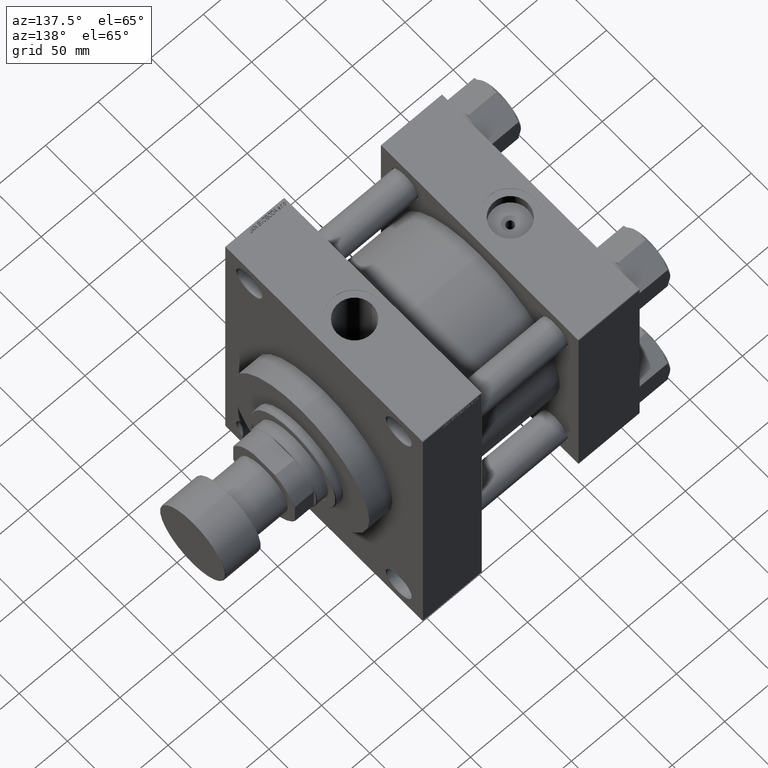
[diagram: clean part render]
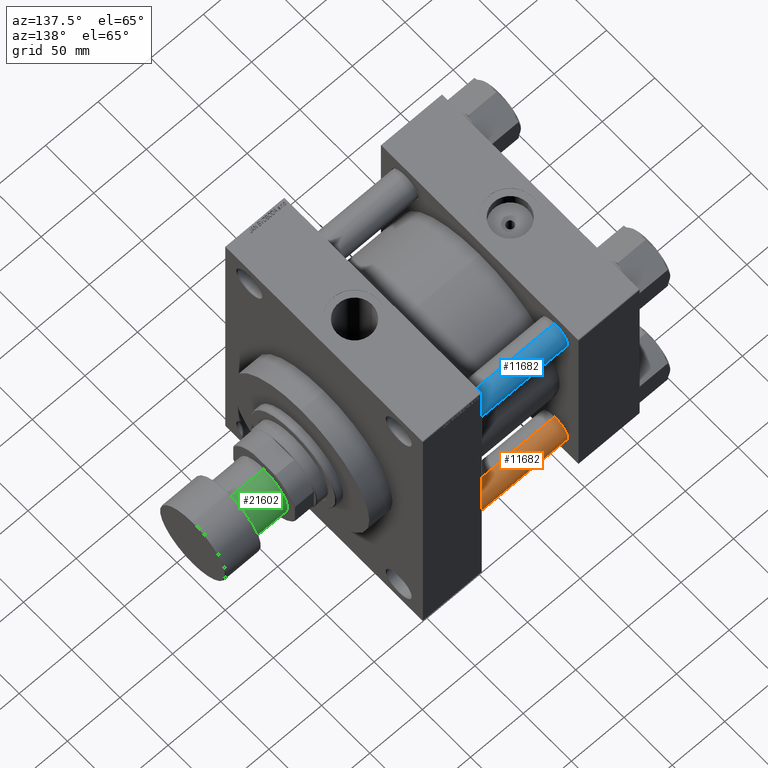
[diagram: same view with three faces highlighted in distinct colors, each labeled with its STEP entity id]
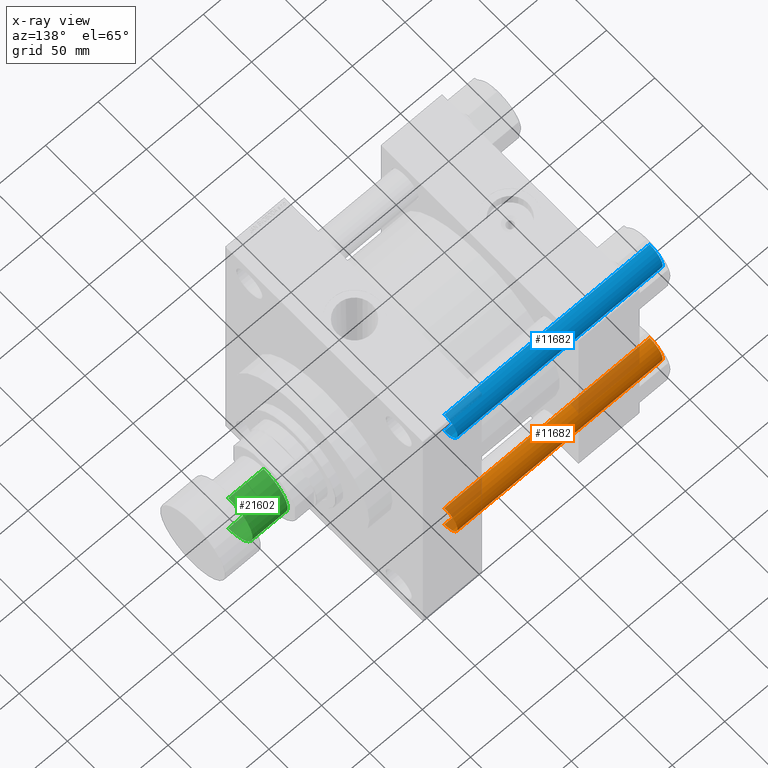
[diagram: x-ray of the same camera — body ghosted, the three highlighted faces saturated]
A machine part, auxiliary view with three faces highlighted in distinct colors.
The next image is the same camera in x-ray (body ghosted, the three faces saturated) — at least one of them is partly hidden behind the body in this view.
Their STEP definitions:

[orange] entity #11682 — the highlighted cylindrical surface (edge-blend (fillet) strip) has radius 13.5 mm, axis along (-1, -0, 0).
#63 = VERTEX_POINT ( 'NONE', #25519 ) ;
#1033 = LINE ( 'NONE', #30973, #38348 ) ;
#1485 = FACE_OUTER_BOUND ( 'NONE', #45950, .T. ) ;
#4372 = CARTESIAN_POINT ( 'NONE',  ( -13.50000000000000000, 0.000000000000000000, 0.4999999999999726885 ) ) ;
#6468 = DIRECTION ( 'NONE',  ( -0.000000000000000000, -0.000000000000000000, -1.000000000000000000 ) ) ;
#6941 = LINE ( 'NONE', #10119, #24000 ) ;
#7500 = VERTEX_POINT ( 'NONE', #4372 ) ;
#9059 = ORIENTED_EDGE ( 'NONE', *, *, #12399, .T. ) ;
#9957 = ORIENTED_EDGE ( 'NONE', *, *, #35937, .F. ) ;
#10119 = CARTESIAN_POINT ( 'NONE',  ( 13.50000000000000000, 1.653273178848926867E-15, 196.0000000000000000 ) ) ;
#11130 = EDGE_CURVE ( 'NONE', #63, #31006, #6941, .T. ) ;
#11682 = ADVANCED_FACE ( 'NONE', ( #1485 ), #27047, .T. ) ;
#12399 = EDGE_CURVE ( 'NONE', #31006, #7500, #15460, .T. ) ;
#12446 = DIRECTION ( 'NONE',  ( -0.000000000000000000, -0.000000000000000000, 1.000000000000000000 ) ) ;
#12896 = EDGE_CURVE ( 'NONE', #18075, #63, #26347, .T. ) ;
#15460 = CIRCLE ( 'NONE', #20139, 13.50000000000000000 ) ;
#17720 = CARTESIAN_POINT ( 'NONE',  ( 0.000000000000000000, 0.000000000000000000, 195.5000000000000284 ) ) ;
#18075 = VERTEX_POINT ( 'NONE', #43766 ) ;
#20139 = AXIS2_PLACEMENT_3D ( 'NONE', #27295, #12446, #34834 ) ;
#23201 = DIRECTION ( 'NONE',  ( -0.000000000000000000, -0.000000000000000000, -1.000000000000000000 ) ) ;
#24000 = VECTOR ( 'NONE', #6468, 1000.000000000000000 ) ;
#24571 = DIRECTION ( 'NONE',  ( 1.000000000000000000, 0.000000000000000000, 0.000000000000000000 ) ) ;
#25032 = DIRECTION ( 'NONE',  ( 0.000000000000000000, 0.000000000000000000, -1.000000000000000000 ) ) ;
#25519 = CARTESIAN_POINT ( 'NONE',  ( 13.50000000000000000, 1.653273178848926867E-15, 195.5000000000000284 ) ) ;
#26347 = CIRCLE ( 'NONE', #44230, 13.50000000000000000 ) ;
#27047 = CYLINDRICAL_SURFACE ( 'NONE', #40305, 13.50000000000000000 ) ;
#27295 = CARTESIAN_POINT ( 'NONE',  ( 0.000000000000000000, 0.000000000000000000, 0.4999999999999726885 ) ) ;
#27774 = DIRECTION ( 'NONE',  ( -0.000000000000000000, -0.000000000000000000, -1.000000000000000000 ) ) ;
#30973 = CARTESIAN_POINT ( 'NONE',  ( -13.50000000000000000, 0.000000000000000000, 196.0000000000000000 ) ) ;
#31006 = VERTEX_POINT ( 'NONE', #31031 ) ;
#31031 = CARTESIAN_POINT ( 'NONE',  ( 13.50000000000000000, 1.653273178848926867E-15, 0.4999999999999726885 ) ) ;
#34834 = DIRECTION ( 'NONE',  ( 1.000000000000000000, 0.000000000000000000, 0.000000000000000000 ) ) ;
#35937 = EDGE_CURVE ( 'NONE', #18075, #7500, #1033, .T. ) ;
#38348 = VECTOR ( 'NONE', #23201, 1000.000000000000000 ) ;
#38474 = CARTESIAN_POINT ( 'NONE',  ( 0.000000000000000000, 0.000000000000000000, 196.0000000000000000 ) ) ;
#40305 = AXIS2_PLACEMENT_3D ( 'NONE', #38474, #27774, #41886 ) ;
#41886 = DIRECTION ( 'NONE',  ( -1.000000000000000000, 0.000000000000000000, 0.000000000000000000 ) ) ;
#43766 = CARTESIAN_POINT ( 'NONE',  ( -13.50000000000000000, 0.000000000000000000, 195.5000000000000284 ) ) ;
#44066 = ORIENTED_EDGE ( 'NONE', *, *, #12896, .T. ) ;
#44230 = AXIS2_PLACEMENT_3D ( 'NONE', #17720, #25032, #24571 ) ;
#44877 = ORIENTED_EDGE ( 'NONE', *, *, #11130, .T. ) ;
#45950 = EDGE_LOOP ( 'NONE', ( #44066, #44877, #9059, #9957 ) ) ;

[blue] entity #11682 — the highlighted cylindrical surface (edge-blend (fillet) strip) has radius 13.5 mm, axis along (1, -0, -0).
#63 = VERTEX_POINT ( 'NONE', #25519 ) ;
#1033 = LINE ( 'NONE', #30973, #38348 ) ;
#1485 = FACE_OUTER_BOUND ( 'NONE', #45950, .T. ) ;
#4372 = CARTESIAN_POINT ( 'NONE',  ( -13.50000000000000000, 0.000000000000000000, 0.4999999999999726885 ) ) ;
#6468 = DIRECTION ( 'NONE',  ( -0.000000000000000000, -0.000000000000000000, -1.000000000000000000 ) ) ;
#6941 = LINE ( 'NONE', #10119, #24000 ) ;
#7500 = VERTEX_POINT ( 'NONE', #4372 ) ;
#9059 = ORIENTED_EDGE ( 'NONE', *, *, #12399, .T. ) ;
#9957 = ORIENTED_EDGE ( 'NONE', *, *, #35937, .F. ) ;
#10119 = CARTESIAN_POINT ( 'NONE',  ( 13.50000000000000000, 1.653273178848926867E-15, 196.0000000000000000 ) ) ;
#11130 = EDGE_CURVE ( 'NONE', #63, #31006, #6941, .T. ) ;
#11682 = ADVANCED_FACE ( 'NONE', ( #1485 ), #27047, .T. ) ;
#12399 = EDGE_CURVE ( 'NONE', #31006, #7500, #15460, .T. ) ;
#12446 = DIRECTION ( 'NONE',  ( -0.000000000000000000, -0.000000000000000000, 1.000000000000000000 ) ) ;
#12896 = EDGE_CURVE ( 'NONE', #18075, #63, #26347, .T. ) ;
#15460 = CIRCLE ( 'NONE', #20139, 13.50000000000000000 ) ;
#17720 = CARTESIAN_POINT ( 'NONE',  ( 0.000000000000000000, 0.000000000000000000, 195.5000000000000284 ) ) ;
#18075 = VERTEX_POINT ( 'NONE', #43766 ) ;
#20139 = AXIS2_PLACEMENT_3D ( 'NONE', #27295, #12446, #34834 ) ;
#23201 = DIRECTION ( 'NONE',  ( -0.000000000000000000, -0.000000000000000000, -1.000000000000000000 ) ) ;
#24000 = VECTOR ( 'NONE', #6468, 1000.000000000000000 ) ;
#24571 = DIRECTION ( 'NONE',  ( 1.000000000000000000, 0.000000000000000000, 0.000000000000000000 ) ) ;
#25032 = DIRECTION ( 'NONE',  ( 0.000000000000000000, 0.000000000000000000, -1.000000000000000000 ) ) ;
#25519 = CARTESIAN_POINT ( 'NONE',  ( 13.50000000000000000, 1.653273178848926867E-15, 195.5000000000000284 ) ) ;
#26347 = CIRCLE ( 'NONE', #44230, 13.50000000000000000 ) ;
#27047 = CYLINDRICAL_SURFACE ( 'NONE', #40305, 13.50000000000000000 ) ;
#27295 = CARTESIAN_POINT ( 'NONE',  ( 0.000000000000000000, 0.000000000000000000, 0.4999999999999726885 ) ) ;
#27774 = DIRECTION ( 'NONE',  ( -0.000000000000000000, -0.000000000000000000, -1.000000000000000000 ) ) ;
#30973 = CARTESIAN_POINT ( 'NONE',  ( -13.50000000000000000, 0.000000000000000000, 196.0000000000000000 ) ) ;
#31006 = VERTEX_POINT ( 'NONE', #31031 ) ;
#31031 = CARTESIAN_POINT ( 'NONE',  ( 13.50000000000000000, 1.653273178848926867E-15, 0.4999999999999726885 ) ) ;
#34834 = DIRECTION ( 'NONE',  ( 1.000000000000000000, 0.000000000000000000, 0.000000000000000000 ) ) ;
#35937 = EDGE_CURVE ( 'NONE', #18075, #7500, #1033, .T. ) ;
#38348 = VECTOR ( 'NONE', #23201, 1000.000000000000000 ) ;
#38474 = CARTESIAN_POINT ( 'NONE',  ( 0.000000000000000000, 0.000000000000000000, 196.0000000000000000 ) ) ;
#40305 = AXIS2_PLACEMENT_3D ( 'NONE', #38474, #27774, #41886 ) ;
#41886 = DIRECTION ( 'NONE',  ( -1.000000000000000000, 0.000000000000000000, 0.000000000000000000 ) ) ;
#43766 = CARTESIAN_POINT ( 'NONE',  ( -13.50000000000000000, 0.000000000000000000, 195.5000000000000284 ) ) ;
#44066 = ORIENTED_EDGE ( 'NONE', *, *, #12896, .T. ) ;
#44230 = AXIS2_PLACEMENT_3D ( 'NONE', #17720, #25032, #24571 ) ;
#44877 = ORIENTED_EDGE ( 'NONE', *, *, #11130, .T. ) ;
#45950 = EDGE_LOOP ( 'NONE', ( #44066, #44877, #9059, #9957 ) ) ;

[green] entity #21602 — the highlighted cylindrical surface (edge-blend (fillet) strip) has radius 25 mm, axis along (1, 0, 0).
#31 = CARTESIAN_POINT ( 'NONE',  ( -25.00000000000000000, 3.061616997868383043E-15, -67.50000000000000000 ) ) ;
#1710 = CIRCLE ( 'NONE', #41300, 25.00000000000000000 ) ;
#9628 = VERTEX_POINT ( 'NONE', #31 ) ;
#10066 = EDGE_CURVE ( 'NONE', #9628, #26892, #24253, .T. ) ;
#10143 = EDGE_LOOP ( 'NONE', ( #39162, #37779, #26295, #26951 ) ) ;
#10150 = EDGE_CURVE ( 'NONE', #31754, #18112, #16936, .T. ) ;
#10344 = DIRECTION ( 'NONE',  ( -0.000000000000000000, -0.000000000000000000, 1.000000000000000000 ) ) ;
#13280 = CARTESIAN_POINT ( 'NONE',  ( 25.00000000000000000, 0.000000000000000000, -67.50000000000000000 ) ) ;
#14692 = DIRECTION ( 'NONE',  ( 0.000000000000000000, 0.000000000000000000, -1.000000000000000000 ) ) ;
#14778 = DIRECTION ( 'NONE',  ( -1.000000000000000000, 0.000000000000000000, 0.000000000000000000 ) ) ;
#15166 = DIRECTION ( 'NONE',  ( -1.000000000000000000, 0.000000000000000000, 0.000000000000000000 ) ) ;
#16151 = VECTOR ( 'NONE', #46623, 1000.000000000000000 ) ;
#16936 = LINE ( 'NONE', #13280, #40270 ) ;
#18112 = VERTEX_POINT ( 'NONE', #43533 ) ;
#21602 = ADVANCED_FACE ( 'NONE', ( #44087 ), #30206, .T. ) ;
#22497 = CARTESIAN_POINT ( 'NONE',  ( 0.000000000000000000, 0.000000000000000000, -67.50000000000000000 ) ) ;
#22673 = DIRECTION ( 'NONE',  ( 1.000000000000000000, 0.000000000000000000, 0.000000000000000000 ) ) ;
#22735 = AXIS2_PLACEMENT_3D ( 'NONE', #37638, #37405, #14778 ) ;
#24240 = CARTESIAN_POINT ( 'NONE',  ( 25.00000000000000000, 0.000000000000000000, -67.50000000000000000 ) ) ;
#24253 = LINE ( 'NONE', #31799, #16151 ) ;
#26295 = ORIENTED_EDGE ( 'NONE', *, *, #43553, .T. ) ;
#26892 = VERTEX_POINT ( 'NONE', #42400 ) ;
#26951 = ORIENTED_EDGE ( 'NONE', *, *, #10150, .F. ) ;
#30206 = CYLINDRICAL_SURFACE ( 'NONE', #37174, 25.00000000000000000 ) ;
#30671 = DIRECTION ( 'NONE',  ( -0.000000000000000000, -0.000000000000000000, 1.000000000000000000 ) ) ;
#31754 = VERTEX_POINT ( 'NONE', #24240 ) ;
#31799 = CARTESIAN_POINT ( 'NONE',  ( -25.00000000000000000, 3.061616997868383043E-15, -67.50000000000000000 ) ) ;
#33386 = CARTESIAN_POINT ( 'NONE',  ( 0.000000000000000000, 0.000000000000000000, -67.50000000000000000 ) ) ;
#35126 = CIRCLE ( 'NONE', #22735, 25.00000000000000000 ) ;
#37174 = AXIS2_PLACEMENT_3D ( 'NONE', #33386, #30671, #22673 ) ;
#37405 = DIRECTION ( 'NONE',  ( 0.000000000000000000, 0.000000000000000000, -1.000000000000000000 ) ) ;
#37638 = CARTESIAN_POINT ( 'NONE',  ( 0.000000000000000000, 0.000000000000000000, -34.00000000000000000 ) ) ;
#37779 = ORIENTED_EDGE ( 'NONE', *, *, #10066, .T. ) ;
#39162 = ORIENTED_EDGE ( 'NONE', *, *, #42693, .F. ) ;
#40270 = VECTOR ( 'NONE', #10344, 1000.000000000000000 ) ;
#41300 = AXIS2_PLACEMENT_3D ( 'NONE', #22497, #14692, #15166 ) ;
#42400 = CARTESIAN_POINT ( 'NONE',  ( -25.00000000000000000, 3.061616997868383043E-15, -34.00000000000000000 ) ) ;
#42693 = EDGE_CURVE ( 'NONE', #9628, #31754, #1710, .T. ) ;
#43533 = CARTESIAN_POINT ( 'NONE',  ( 25.00000000000000000, 0.000000000000000000, -34.00000000000000000 ) ) ;
#43553 = EDGE_CURVE ( 'NONE', #26892, #18112, #35126, .T. ) ;
#44087 = FACE_OUTER_BOUND ( 'NONE', #10143, .T. ) ;
#46623 = DIRECTION ( 'NONE',  ( -0.000000000000000000, -0.000000000000000000, 1.000000000000000000 ) ) ;